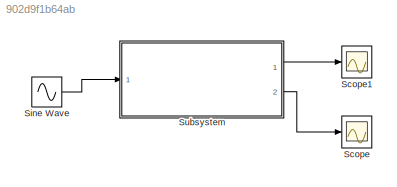
MODEL slx_902d9f1b64ab
KIND model
CONFIG AbsTol = auto
CONFIG EnableMultiTasking = off
CONFIG FixedStep = auto
CONFIG MaxStep = auto
CONFIG MinStep = auto
CONFIG RelTol = 1e-3
CONFIG SampleTimeConstraint = Unconstrained
CONFIG Solver = VariableStepAuto
CONFIG SolverName = VariableStepAuto
CONFIG StartTime = 0.0
CONFIG StopTime = 10.0
BLOCK [Scope] Scope
  Floating = off
  NumInputPorts = 1
  Ports = [1]
  ScopeSpecificationString = Simulink.scopes.TimeScopeBlockCfg('CurrentConfiguration', extmgr.ConfigurationSet(extmgr.Configuration('Core','General UI',true),extmgr.Configuration('Core','Source UI',true),extmgr.Configuration('Sources','WiredSimulink',true),extmgr.Configuration('Visuals','Time Domain',true,'SerializedDisplays',{struct('MinYLimReal','-0.02532','MaxYLimReal','0.02591','YLabelReal','','MinYLimMag','0.00000','MaxY...<+1331ch>
BLOCK [Scope] Scope1
  Floating = off
  NumInputPorts = 1
  Ports = [1]
  ScopeSpecificationString = Simulink.scopes.TimeScopeBlockCfg('CurrentConfiguration', extmgr.ConfigurationSet(extmgr.Configuration('Core','General UI',true),extmgr.Configuration('Core','Source UI',true),extmgr.Configuration('Sources','WiredSimulink',true,'DataLoggingVariableName','ScopeData1'),extmgr.Configuration('Visuals','Time Domain',true,'SerializedDisplays',{struct('MinYLimReal','-0.02546','MaxYLimReal','0.02595','YLab...<+1370ch>
BLOCK [Sin] Sine Wave
  Amplitude = 0.02
  Ports = [0, 1]
  SampleTime = 0
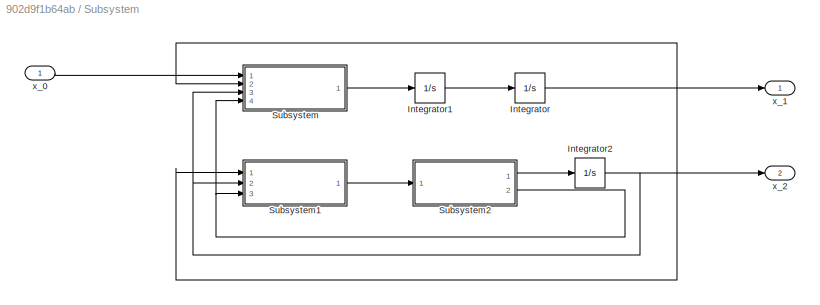
BLOCK [SubSystem] Subsystem
  Ports = [1, 2]
  RequestExecContextInheritance = off
BLOCK [Integrator] Subsystem/Integrator
  Ports = [1, 1]
BLOCK [Integrator] Subsystem/Integrator1
  Ports = [1, 1]
BLOCK [Integrator] Subsystem/Integrator2
  Ports = [1, 1]
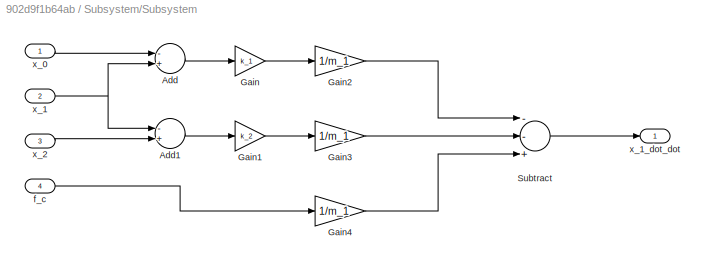
BLOCK [SubSystem] Subsystem/Subsystem
  Ports = [4, 1]
  RequestExecContextInheritance = off
BLOCK [Sum] Subsystem/Subsystem/Add
  InputSameDT = off
  Inputs = -+
  OutDataTypeStr = Inherit: Inherit via internal rule
  Ports = [2, 1]
  SaturateOnIntegerOverflow = off
BLOCK [Sum] Subsystem/Subsystem/Add1
  InputSameDT = off
  Inputs = -+
  OutDataTypeStr = Inherit: Inherit via internal rule
  Ports = [2, 1]
  SaturateOnIntegerOverflow = off
BLOCK [Gain] Subsystem/Subsystem/Gain
  Gain = k_1
  OutDataTypeStr = Inherit: Inherit via internal rule
  ParamDataTypeStr = Inherit: Inherit via internal rule
  SaturateOnIntegerOverflow = off
BLOCK [Gain] Subsystem/Subsystem/Gain1
  Gain = k_2
  OutDataTypeStr = Inherit: Inherit via internal rule
  ParamDataTypeStr = Inherit: Inherit via internal rule
  SaturateOnIntegerOverflow = off
BLOCK [Gain] Subsystem/Subsystem/Gain2
  Gain = 1/m_1
  OutDataTypeStr = Inherit: Inherit via internal rule
  ParamDataTypeStr = Inherit: Inherit via internal rule
  SaturateOnIntegerOverflow = off
BLOCK [Gain] Subsystem/Subsystem/Gain3
  Gain = 1/m_1
  OutDataTypeStr = Inherit: Inherit via internal rule
  ParamDataTypeStr = Inherit: Inherit via internal rule
  SaturateOnIntegerOverflow = off
BLOCK [Gain] Subsystem/Subsystem/Gain4
  Gain = 1/m_1
  OutDataTypeStr = Inherit: Inherit via internal rule
  ParamDataTypeStr = Inherit: Inherit via internal rule
  SaturateOnIntegerOverflow = off
BLOCK [Sum] Subsystem/Subsystem/Subtract
  InputSameDT = off
  Inputs = --+
  OutDataTypeStr = Inherit: Inherit via internal rule
  Ports = [3, 1]
  SaturateOnIntegerOverflow = off
BLOCK [Inport] Subsystem/Subsystem/f_c
  IconDisplay = Port number
  Port = 4
BLOCK [Inport] Subsystem/Subsystem/x_0
  IconDisplay = Port number
BLOCK [Inport] Subsystem/Subsystem/x_1
  IconDisplay = Port number
  Port = 2
BLOCK [Outport] Subsystem/Subsystem/x_1_dot_dot
  IconDisplay = Port number
BLOCK [Inport] Subsystem/Subsystem/x_2
  IconDisplay = Port number
  Port = 3
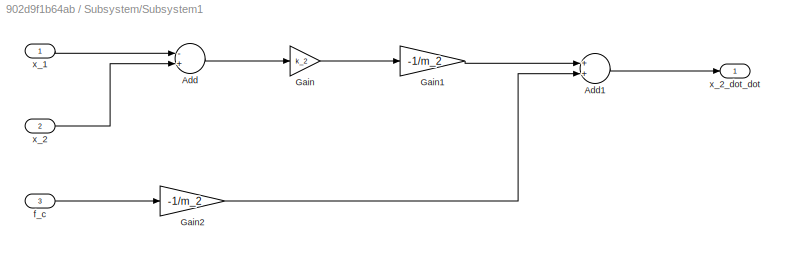
BLOCK [SubSystem] Subsystem/Subsystem1
  Ports = [3, 1]
  RequestExecContextInheritance = off
BLOCK [Sum] Subsystem/Subsystem1/Add
  InputSameDT = off
  Inputs = -+
  OutDataTypeStr = Inherit: Inherit via internal rule
  Ports = [2, 1]
  SaturateOnIntegerOverflow = off
BLOCK [Sum] Subsystem/Subsystem1/Add1
  InputSameDT = off
  OutDataTypeStr = Inherit: Inherit via internal rule
  Ports = [2, 1]
  SaturateOnIntegerOverflow = off
BLOCK [Gain] Subsystem/Subsystem1/Gain
  Gain = k_2
  OutDataTypeStr = Inherit: Inherit via internal rule
  ParamDataTypeStr = Inherit: Inherit via internal rule
  SaturateOnIntegerOverflow = off
BLOCK [Gain] Subsystem/Subsystem1/Gain1
  Gain = -1/m_2
  OutDataTypeStr = Inherit: Inherit via internal rule
  ParamDataTypeStr = Inherit: Inherit via internal rule
  SaturateOnIntegerOverflow = off
BLOCK [Gain] Subsystem/Subsystem1/Gain2
  Gain = -1/m_2
  OutDataTypeStr = Inherit: Inherit via internal rule
  ParamDataTypeStr = Inherit: Inherit via internal rule
  SaturateOnIntegerOverflow = off
BLOCK [Inport] Subsystem/Subsystem1/f_c
  IconDisplay = Port number
  Port = 3
BLOCK [Inport] Subsystem/Subsystem1/x_1
  IconDisplay = Port number
BLOCK [Inport] Subsystem/Subsystem1/x_2
  IconDisplay = Port number
  Port = 2
BLOCK [Outport] Subsystem/Subsystem1/x_2_dot_dot
  IconDisplay = Port number
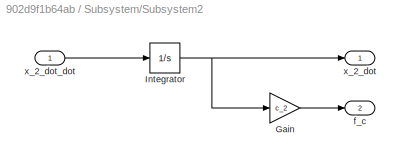
BLOCK [SubSystem] Subsystem/Subsystem2
  Ports = [1, 2]
  RequestExecContextInheritance = off
BLOCK [Gain] Subsystem/Subsystem2/Gain
  Gain = c_2
  OutDataTypeStr = Inherit: Inherit via internal rule
  ParamDataTypeStr = Inherit: Inherit via internal rule
  SaturateOnIntegerOverflow = off
BLOCK [Integrator] Subsystem/Subsystem2/Integrator
  Ports = [1, 1]
BLOCK [Outport] Subsystem/Subsystem2/f_c
  IconDisplay = Port number
  Port = 2
BLOCK [Outport] Subsystem/Subsystem2/x_2_dot
  IconDisplay = Port number
BLOCK [Inport] Subsystem/Subsystem2/x_2_dot_dot
  IconDisplay = Port number
BLOCK [Inport] Subsystem/x_0
  IconDisplay = Port number
BLOCK [Outport] Subsystem/x_1
  IconDisplay = Port number
BLOCK [Outport] Subsystem/x_2
  IconDisplay = Port number
  Port = 2
LINE Sine Wave:1 -> Subsystem:1
LINE Subsystem/Integrator1:1 -> Subsystem/Integrator:1
NET Subsystem/Integrator2:1 -> Subsystem/Subsystem1:2, Subsystem/Subsystem:3, Subsystem/x_2:1
NET Subsystem/Integrator:1 -> Subsystem/Subsystem1:1, Subsystem/Subsystem:2, Subsystem/x_1:1
LINE Subsystem/Subsystem/Add1:1 -> Subsystem/Subsystem/Gain1:1
LINE Subsystem/Subsystem/Add:1 -> Subsystem/Subsystem/Gain:1
LINE Subsystem/Subsystem/Gain1:1 -> Subsystem/Subsystem/Gain3:1
LINE Subsystem/Subsystem/Gain2:1 -> Subsystem/Subsystem/Subtract:1
LINE Subsystem/Subsystem/Gain3:1 -> Subsystem/Subsystem/Subtract:2
LINE Subsystem/Subsystem/Gain4:1 -> Subsystem/Subsystem/Subtract:3
LINE Subsystem/Subsystem/Gain:1 -> Subsystem/Subsystem/Gain2:1
LINE Subsystem/Subsystem/Subtract:1 -> Subsystem/Subsystem/x_1_dot_dot:1
LINE Subsystem/Subsystem/f_c:1 -> Subsystem/Subsystem/Gain4:1
LINE Subsystem/Subsystem/x_0:1 -> Subsystem/Subsystem/Add:1
NET Subsystem/Subsystem/x_1:1 -> Subsystem/Subsystem/Add1:1, Subsystem/Subsystem/Add:2
LINE Subsystem/Subsystem/x_2:1 -> Subsystem/Subsystem/Add1:2
LINE Subsystem/Subsystem1/Add1:1 -> Subsystem/Subsystem1/x_2_dot_dot:1
LINE Subsystem/Subsystem1/Add:1 -> Subsystem/Subsystem1/Gain:1
LINE Subsystem/Subsystem1/Gain1:1 -> Subsystem/Subsystem1/Add1:1
LINE Subsystem/Subsystem1/Gain2:1 -> Subsystem/Subsystem1/Add1:2
LINE Subsystem/Subsystem1/Gain:1 -> Subsystem/Subsystem1/Gain1:1
LINE Subsystem/Subsystem1/f_c:1 -> Subsystem/Subsystem1/Gain2:1
LINE Subsystem/Subsystem1/x_1:1 -> Subsystem/Subsystem1/Add:1
LINE Subsystem/Subsystem1/x_2:1 -> Subsystem/Subsystem1/Add:2
LINE Subsystem/Subsystem1:1 -> Subsystem/Subsystem2:1
LINE Subsystem/Subsystem2/Gain:1 -> Subsystem/Subsystem2/f_c:1
NET Subsystem/Subsystem2/Integrator:1 -> Subsystem/Subsystem2/Gain:1, Subsystem/Subsystem2/x_2_dot:1
LINE Subsystem/Subsystem2/x_2_dot_dot:1 -> Subsystem/Subsystem2/Integrator:1
LINE Subsystem/Subsystem2:1 -> Subsystem/Integrator2:1
NET Subsystem/Subsystem2:2 -> Subsystem/Subsystem1:3, Subsystem/Subsystem:4
LINE Subsystem/Subsystem:1 -> Subsystem/Integrator1:1
LINE Subsystem/x_0:1 -> Subsystem/Subsystem:1
LINE Subsystem:1 -> Scope1:1
LINE Subsystem:2 -> Scope:1
note: NET lines group one-source signal fan-out (src -> all destinations, sorted); 1:1 wires keep LINE
